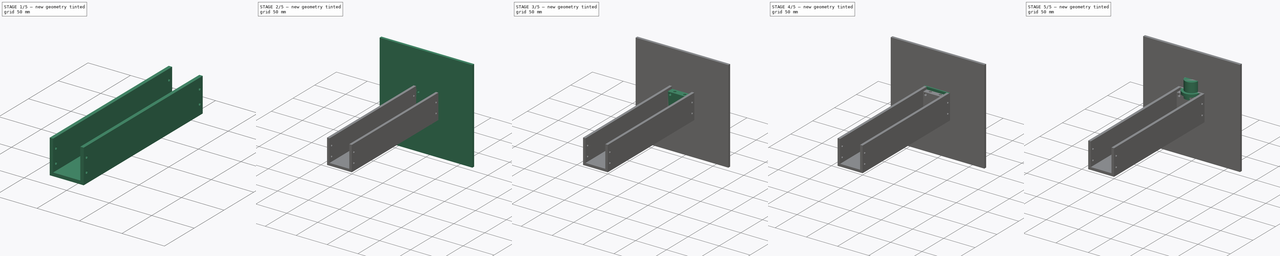
[diagram: build sequence overview — one tinted view per stage of 5, left to right]
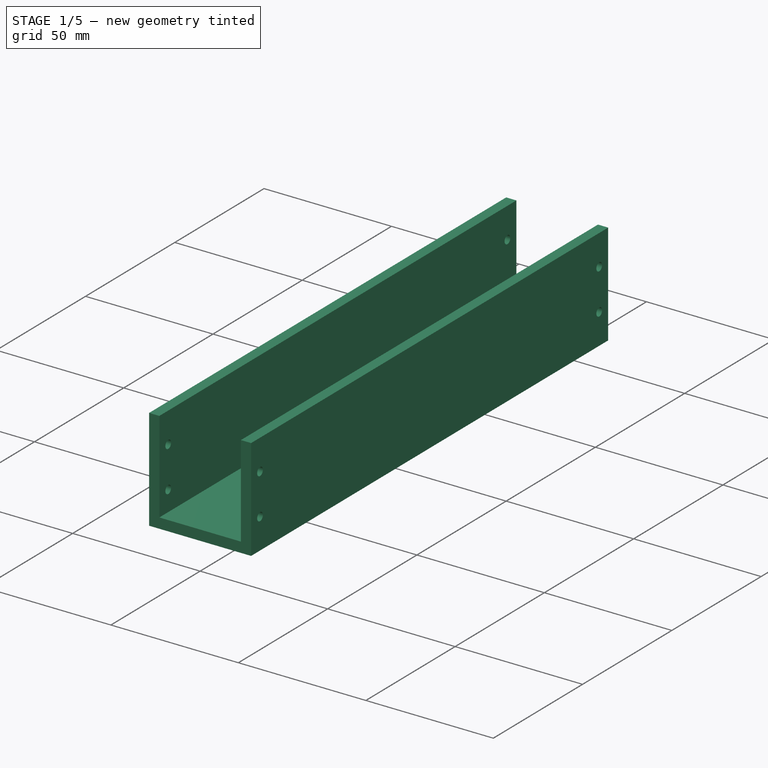
[diagram: stage 1 of 5 — iso view after this stage's code; geometry added in this stage tinted green]
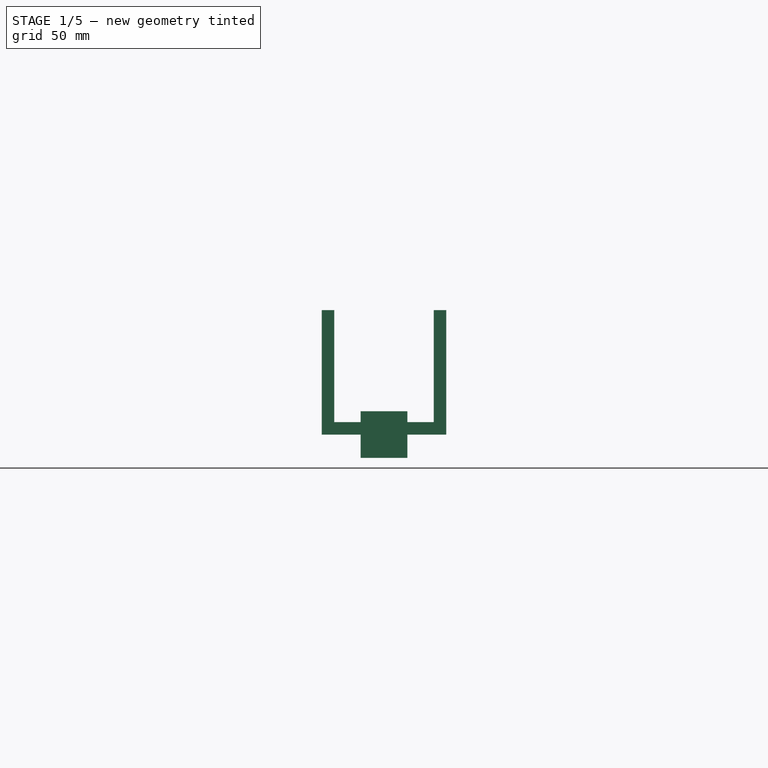
[diagram: stage 1 of 5 — front view after this stage's code; geometry added in this stage tinted green]
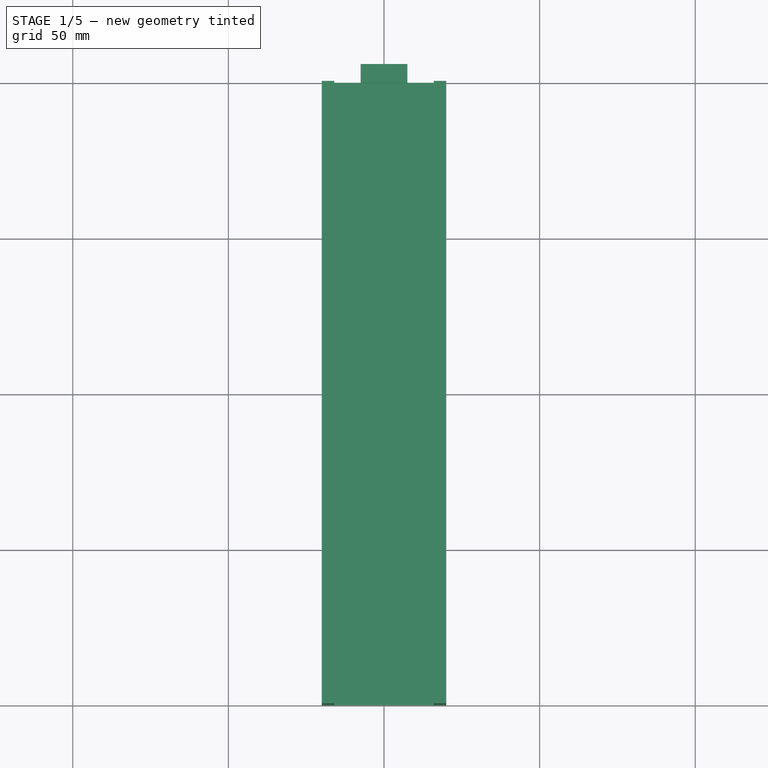
[diagram: stage 1 of 5 — top view after this stage's code; geometry added in this stage tinted green]
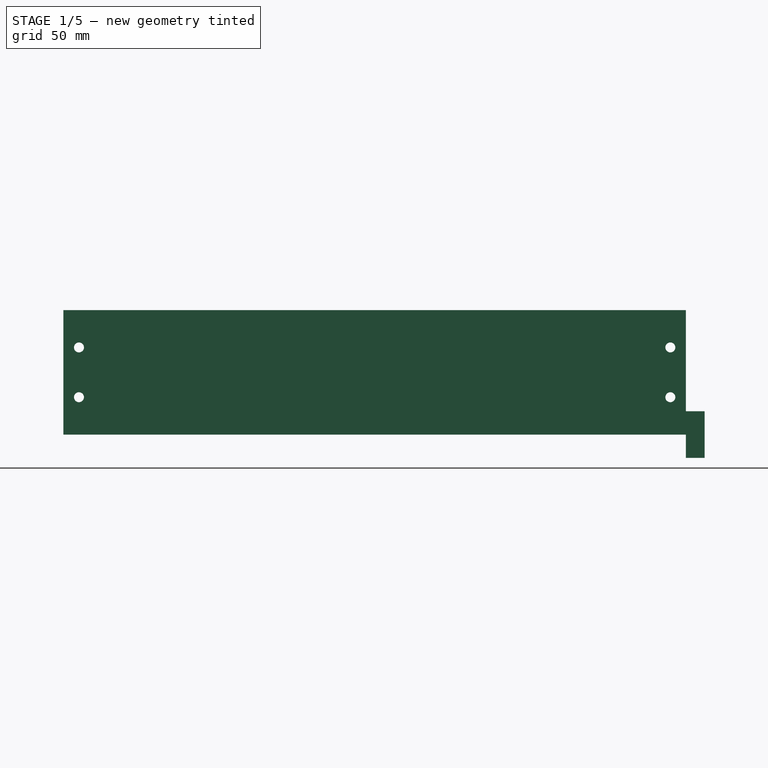
[diagram: stage 1 of 5 — right view after this stage's code; geometry added in this stage tinted green]
FCSTD DOCUMENT  (FreeCAD 0.20R)
Label: Alu-base-1
License: All rights reserved
LicenseURL: http://en.wikipedia.org/wiki/All_rights_reserved
objects: Sketcher::SketchObject×17, PartDesign::Pad×8, PartDesign::Body×8, PartDesign::Pocket×7, Part::Feature×2, App::Part×2, PartDesign::Revolution×2, PartDesign::Draft×1, Part::Part2DObjectPython×1
note: 64 computed .brp shape members not serialized (recipe doc carries the construction recipe); baked Part::Feature solids carry a one-line shape summary decoded from their .brp

FEATURE [Sketcher::SketchObject] Sketch
  FullyConstrained = true
  MapMode = 5
  Placement = pos=(0,0,0) rot=(1,0,0;1.5708rad)
  sketch-geometry (8):
    g0: LineSegment StartX=-20 StartY=40 StartZ=0 EndX=-20 EndY=0 EndZ=0
    g1: LineSegment StartX=-20 StartY=0 StartZ=0 EndX=20 EndY=-1e-16 EndZ=0
    g2: LineSegment StartX=20 StartY=-1e-16 StartZ=0 EndX=20 EndY=40 EndZ=0
    g3: LineSegment StartX=20 StartY=40 StartZ=0 EndX=16 EndY=40 EndZ=0
    g4: LineSegment StartX=16 StartY=4 StartZ=0 EndX=-16 EndY=4 EndZ=0
    g5: LineSegment StartX=-16 StartY=40 StartZ=0 EndX=-20 EndY=40 EndZ=0
    g6: LineSegment StartX=-16 StartY=40 StartZ=0 EndX=-16 EndY=4 EndZ=0
    g7: LineSegment StartX=16 StartY=40 StartZ=0 EndX=16 EndY=4 EndZ=0
  constraints (22):
    c: Vertical(g0)
    c: Coincident(g0,g1)
    c: Coincident(g1,g2)
    c: Coincident(g2,g3)
    c: Horizontal(g3)
    c: Coincident(g5,g0)
    c: Horizontal(g5)
    c: DistanceY(g0,g0) = 40
    c: PointOnObject(g0,g-1)
    c: DistanceX(g1,g1) = 40
    c: Symmetric(g0,g1,g-2)
    c: Symmetric(g0,g2,g-2)
    c: Equal(g3,g5)
    c: DistanceX(g5,g5) = 4
    c: Coincident(g6,g5)
    c: Coincident(g6,g4)
    c: Vertical(g6)
    c: Coincident(g7,g3)
    c: Coincident(g7,g4)
    c: Vertical(g7)
    c: DistanceY(g0,g4) = 4
    c: Horizontal(g4)
FEATURE [PartDesign::Pad] Pad
  Direction = (0,-1,2e-16)
  Length = 200
  Length2 = 10
  Placement = pos=(0,0,0) rot=(1,0,0;1.5708rad)
  Profile = -> Sketch
  ReferenceAxis = -> Sketch [N_Axis]
  Type = 0
FEATURE [PartDesign::Body] Body012  label="Bottom"
  Group = -> [Sketch032,Pad018,Sketch033,Pad019,Sketch034,Pocket013,Sketch035,Pocket014,Sketch039,Pocket015]
  Origin = -> Origin018
  Tip = -> Pocket015
FEATURE [Sketcher::SketchObject] Sketch042
  FullyConstrained = true
  MapMode = 5
  sketch-geometry (11):
    g0: LineSegment StartX=-16 StartY=-200 StartZ=0 EndX=16 EndY=-200 EndZ=0
    g1: LineSegment StartX=16 StartY=-200 StartZ=0 EndX=16 EndY=0 EndZ=0
    g2: LineSegment StartX=16 StartY=0 StartZ=0 EndX=-16 EndY=0 EndZ=0
    g3: LineSegment StartX=-16 StartY=0 StartZ=0 EndX=-16 EndY=-200 EndZ=0
    g4: LineSegment StartX=-8 StartY=-5 StartZ=0 EndX=8 EndY=-5 EndZ=0
    g5: Circle CenterX=-8 CenterY=-5 CenterZ=0 NormalX=0 NormalY=0 NormalZ=1 AngleXU=0 Radius=1.6
    g6: Circle CenterX=8 CenterY=-5 CenterZ=0 NormalX=0 NormalY=0 NormalZ=1 AngleXU=0 Radius=1.6
    g7: Circle CenterX=-8 CenterY=-195 CenterZ=0 NormalX=0 NormalY=0 NormalZ=1 AngleXU=0 Radius=1.6
    g8: Circle CenterX=8 CenterY=-195 CenterZ=0 NormalX=0 NormalY=0 NormalZ=1 AngleXU=0 Radius=1.6
    g9: LineSegment StartX=-8 StartY=-195 StartZ=0 EndX=8 EndY=-195 EndZ=0
    g10: Circle CenterX=0 CenterY=-25 CenterZ=0 NormalX=0 NormalY=0 NormalZ=1 AngleXU=0 Radius=11
  constraints (28):
    c: Coincident(g0,g1)
    c: Coincident(g1,g2)
    c: Coincident(g2,g3)
    c: Coincident(g3,g0)
    c: Horizontal(g2)
    c: Vertical(g1)
    c: Vertical(g3)
    c: Symmetric(g0,g0,g-2)
    c: DistanceY(g1,g1) = 200
    c: DistanceX(g2,g2) = 32
    c: PointOnObject(g2,g-1)
    c: Coincident(g5,g4)
    c: Coincident(g6,g4)
    c: Equal(g6,g5)
    c: Radius(g6) = 1.6
    c: Symmetric(g5,g6,g-2)
    c: DistanceX(g4,g4) = 16
    c: DistanceY(g6) = -5
    c: Equal(g7,g8)
    c: Coincident(g9,g7)
    c: Coincident(g9,g8)
    c: Symmetric(g7,g8,g-2)
    c: DistanceX(g9,g9) = 16
    c: DistanceY(g0,g8) = 5
    c: Equal(g8,g6)
    c: PointOnObject(g10,g-2)
    c: Radius(g10) = 11
    c: DistanceY(g10,g2) = 25
FEATURE [PartDesign::Pad] Pad021
  Direction = (0,0,1)
  Length = 4
  Length2 = 10
  Profile = -> Sketch042
  ReferenceAxis = -> Sketch042 [N_Axis]
  Type = 0
FEATURE [PartDesign::Body] Body019  label="Acrylic-base"
  Group = -> [Sketch049,Pad025]
  Origin = -> Origin025
  Placement = pos=(0,2,0) rot=(0,0,1;0rad)
  Tip = -> Pad025
FEATURE [Sketcher::SketchObject] Sketch053
  FullyConstrained = true
  MapMode = 5
  Placement = pos=(0,0,0) rot=(1,0,0;1.5708rad)
  Support = -> [XZ_Plane027]
  sketch-geometry (4):
    g0: LineSegment StartX=-7.5 StartY=7.5 StartZ=0 EndX=7.5 EndY=7.5 EndZ=0
    g1: LineSegment StartX=7.5 StartY=7.5 StartZ=0 EndX=7.5 EndY=-7.5 EndZ=0
    g2: LineSegment StartX=7.5 StartY=-7.5 StartZ=0 EndX=-7.5 EndY=-7.5 EndZ=0
    g3: LineSegment StartX=-7.5 StartY=-7.5 StartZ=0 EndX=-7.5 EndY=7.5 EndZ=0
  constraints (10):
    c: Coincident(g0,g1)
    c: Coincident(g1,g2)
    c: Coincident(g2,g3)
    c: Coincident(g3,g0)
    c: Horizontal(g0)
    c: Vertical(g3)
    c: Equal(g0,g1)
    c: DistanceX(g0,g0) = 15
    c: Symmetric(g1,g0,g-1)
    c: Symmetric(g1,g2,g-2)
FEATURE [PartDesign::Pad] Pad027
  Direction = (0,-1,2e-16)
  Length = 6
  Length2 = 10
  Placement = pos=(0,0,0) rot=(1,0,0;1.5708rad)
  Profile = -> Sketch053
  ReferenceAxis = -> Sketch053 [N_Axis]
  Reversed = true
  Type = 0
FEATURE [PartDesign::Body] Body021  label="Feet"
  Group = -> [Sketch053,Pad027,Draft]
  Origin = -> Origin027
  Placement = pos=(-65,6,-45) rot=(0,0,1;0rad)
  Tip = -> Draft
FEATURE [Sketcher::SketchObject] Sketch055
  ExternalGeometry = -> [Pad]
  FullyConstrained = true
  MapMode = 5
  Placement = pos=(-20,0,0) rot=(0.707107,0,-0.707107;3.14159rad)
  Support = -> [Pad]
  sketch-geometry (9):
    g0: Circle CenterX=-28 CenterY=195 CenterZ=0 NormalX=0 NormalY=0 NormalZ=1 AngleXU=0 Radius=1.6
    g1: Circle CenterX=-12 CenterY=195 CenterZ=0 NormalX=0 NormalY=0 NormalZ=1 AngleXU=0 Radius=1.6
    g2: LineSegment StartX=-28 StartY=195 StartZ=0 EndX=-12 EndY=195 EndZ=0
    g3: LineSegment StartX=-12 StartY=195 StartZ=0 EndX=-2.13e-14 EndY=200 EndZ=0
    g4: LineSegment StartX=-28 StartY=195 StartZ=0 EndX=-40 EndY=200 EndZ=0
    g5: Circle CenterX=-28 CenterY=5 CenterZ=0 NormalX=0 NormalY=0 NormalZ=1 AngleXU=0 Radius=1.6
    g6: Circle CenterX=-12 CenterY=5 CenterZ=0 NormalX=0 NormalY=0 NormalZ=1 AngleXU=0 Radius=1.6
    g7: LineSegment StartX=-28 StartY=5 StartZ=0 EndX=-12 EndY=5 EndZ=0
    g8: LineSegment StartX=-12 StartY=5 StartZ=0 EndX=-12 EndY=195 EndZ=0
  constraints (22):
    c: Coincident(g2,g0)
    c: Coincident(g2,g1)
    c: Horizontal(g2)
    c: Equal(g0,g1)
    c: DistanceX(g2,g2) = 16
    c: Coincident(g3,g1)
    c: Coincident(g3,g-3)
    c: Coincident(g4,g0)
    c: Coincident(g4,g-3)
    c: Equal(g4,g3)
    c: DistanceY(g1,g3) = 5
    c: Diameter(g1) = 3.2
    c: Coincident(g7,g5)
    c: Coincident(g7,g6)
    c: Horizontal(g7)
    c: Equal(g5,g6)
    c: DistanceX(g7,g7) = 16
    c: Equal(g6,g1)
    c: Coincident(g8,g6)
    c: Vertical(g8)
    c: Coincident(g8,g1)
    c: DistanceY(g-1,g6) = 5
FEATURE [PartDesign::Pocket] Pocket021
  BaseFeature = -> Pad
  Direction = (1,0,2e-16)
  Length = 5
  Length2 = 5
  Placement = pos=(0,0,0) rot=(1,0,0;1.5708rad)
  Profile = -> Sketch055
  ReferenceAxis = -> Sketch055 [N_Axis]
  Type = 1
FEATURE [PartDesign::Body] Body  label="Aluminium"
  Group = -> [Sketch,Pad,Sketch055,Pocket021]
  Origin = -> Origin
  Tip = -> Pocket021
FEATURE [Part::Part2DObjectPython] Shape2DView  # Draft 2D object (typed FeaturePython)
  AutoUpdate = true
  Base = -> Pad021
  Clip = false
  FaceNumbers = [10]
  FuseArch = false
  HiddenLines = false
  InPlace = true
  OnlySolids = false
  Projection = (0,0,1)
  ProjectionMode = 0
  SegmentLength = 0.05
  Tessellation = false
  VisibleOnly = false
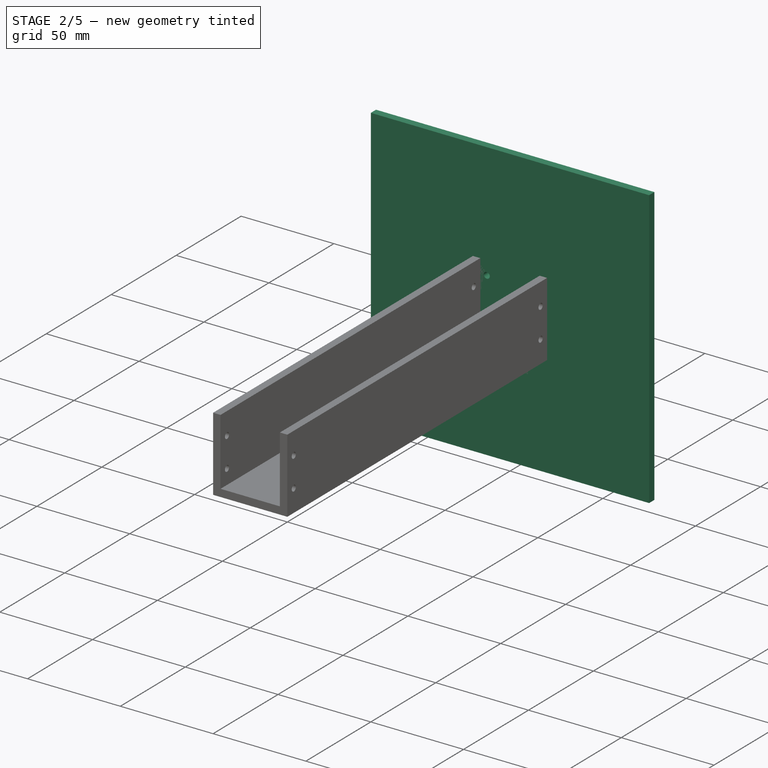
[diagram: stage 2 of 5 — iso view after this stage's code; geometry added in this stage tinted green]
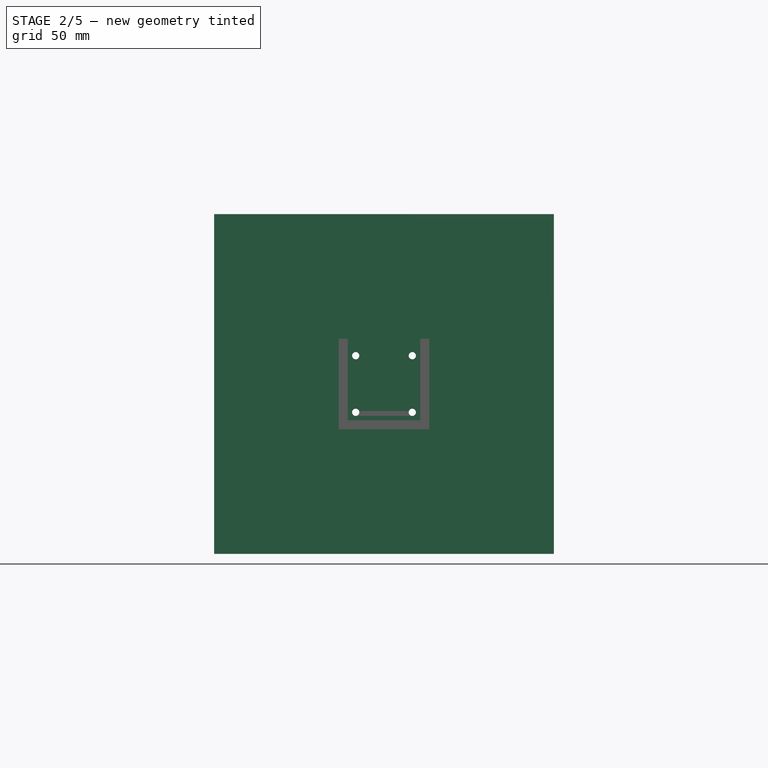
[diagram: stage 2 of 5 — front view after this stage's code; geometry added in this stage tinted green]
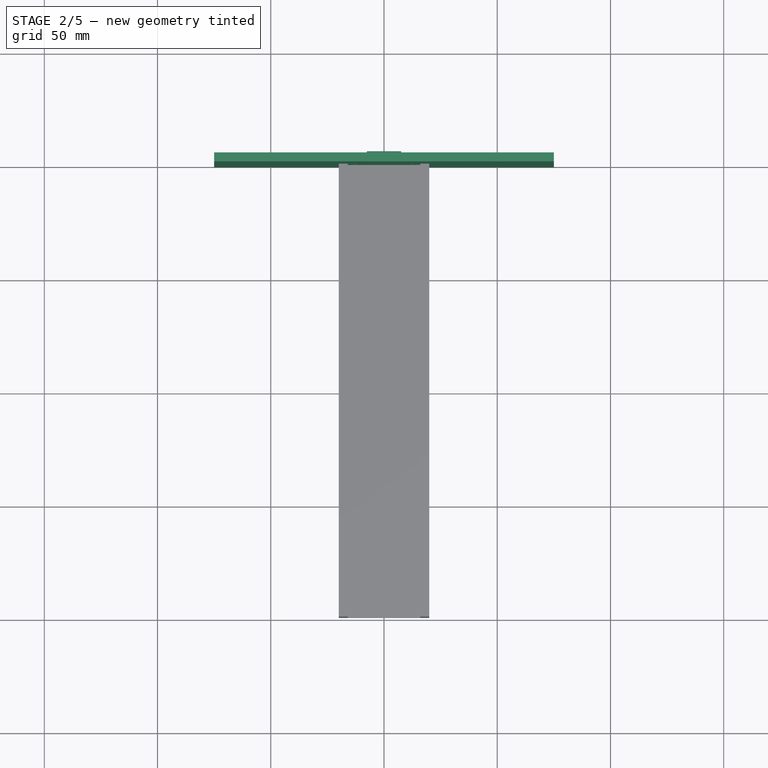
[diagram: stage 2 of 5 — top view after this stage's code; geometry added in this stage tinted green]
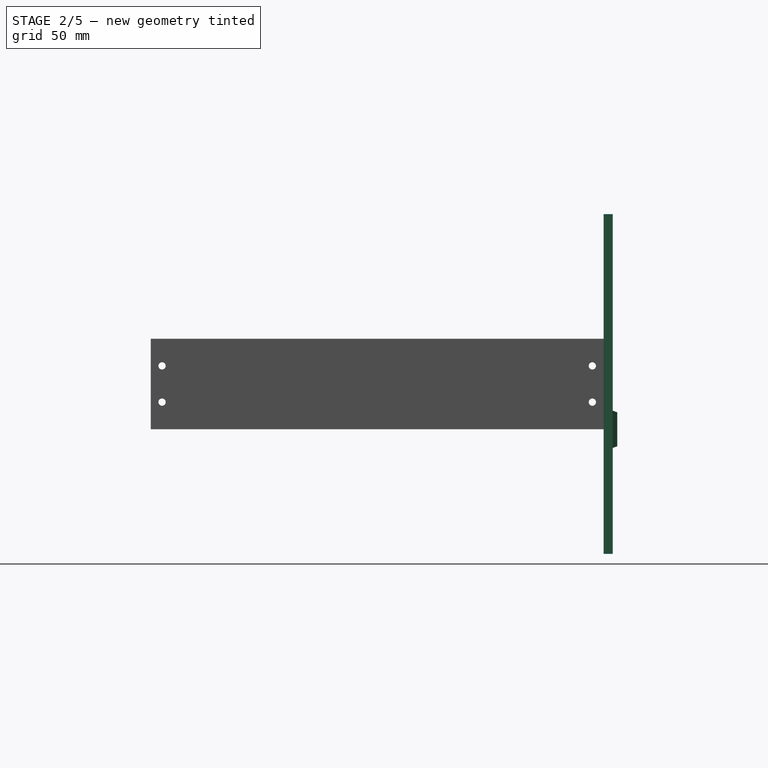
[diagram: stage 2 of 5 — right view after this stage's code; geometry added in this stage tinted green]
FEATURE [PartDesign::Body] Body003  label="Top"
  Group = -> [Sketch003,Pad003,Sketch006,Pad005,Sketch029,Pocket010,Sketch030,Pocket011,Sketch031,Pocket012]
  Origin = -> Origin009
  Placement = pos=(0,-200,0) rot=(0,0,1;0rad)
  Tip = -> Pocket012
FEATURE [Sketcher::SketchObject] Sketch032
  FullyConstrained = true
  MapMode = 5
  Placement = pos=(0,0,0) rot=(1,0,0;1.5708rad)
  Support = -> [XZ_Plane018]
  sketch-geometry (13):
    g0: LineSegment StartX=-20 StartY=40 StartZ=0 EndX=20 EndY=40 EndZ=0
    g1: LineSegment StartX=20 StartY=40 StartZ=0 EndX=20 EndY=0 EndZ=0
    g2: LineSegment StartX=20 StartY=0 StartZ=0 EndX=-20 EndY=0 EndZ=0
    g3: LineSegment StartX=-20 StartY=0 StartZ=0 EndX=-20 EndY=40 EndZ=0
    g4: Circle CenterX=-12.5 CenterY=7.5 CenterZ=0 NormalX=0 NormalY=0 NormalZ=1 AngleXU=0 Radius=2
    g5: Circle CenterX=-12.5 CenterY=32.5 CenterZ=0 NormalX=0 NormalY=0 NormalZ=1 AngleXU=0 Radius=2
    g6: Circle CenterX=12.5 CenterY=32.5 CenterZ=0 NormalX=0 NormalY=0 NormalZ=1 AngleXU=0 Radius=2
    g7: Circle CenterX=12.5 CenterY=7.5 CenterZ=0 NormalX=0 NormalY=0 NormalZ=1 AngleXU=0 Radius=2
    g8: LineSegment StartX=-12.5 StartY=32.5 StartZ=0 EndX=12.5 EndY=32.5 EndZ=0
    g9: LineSegment StartX=12.5 StartY=32.5 StartZ=0 EndX=12.5 EndY=7.5 EndZ=0
    g10: LineSegment StartX=12.5 StartY=7.5 StartZ=0 EndX=-12.5 EndY=7.5 EndZ=0
    g11: LineSegment StartX=-12.5 StartY=7.5 StartZ=0 EndX=-12.5 EndY=32.5 EndZ=0
    g12: LineSegment StartX=-20 StartY=20 StartZ=0 EndX=20 EndY=20 EndZ=0
  constraints (33):
    c: Horizontal(g2)
    c: Vertical(g1)
    c: Vertical(g3)
    c: DistanceY(g2,g0) = 40
    c: DistanceX(g3,g1) = 40
    c: Symmetric(g3,g1,g-2)
    c: Coincident(g8,g9)
    c: Coincident(g9,g10)
    c: Coincident(g10,g11)
    c: Coincident(g11,g8)
    c: Horizontal(g10)
    c: Vertical(g9)
    c: Vertical(g11)
    c: Coincident(g8,g5)
    c: Coincident(g9,g7)
    c: Coincident(g6,g8)
    c: Coincident(g4,g10)
    c: Equal(g4,g5)
    c: Equal(g5,g6)
    c: Equal(g6,g7)
    c: Diameter(g6) = 4
    c: Equal(g8,g9)
    c: DistanceX(g8,g8) = 25
    c: Symmetric(g5,g6,g-2)
    c: PointOnObject(g2,g-1)
    c: Coincident(g0,g3)
    c: Coincident(g0,g1)
    c: Coincident(g1,g2)
    c: Coincident(g2,g3)
    c: PointOnObject(g12,g3)
    c: PointOnObject(g12,g1)
    c: DistanceY(g12) = 20
    c: Symmetric(g7,g6,g12)
FEATURE [PartDesign::Pad] Pad018
  Direction = (0,-1,-2e-16)
  Length = 2
  Length2 = 10
  Placement = pos=(0,0,0) rot=(1,0,0;1.5708rad)
  Profile = -> Sketch032
  ReferenceAxis = -> Sketch032 [N_Axis]
  Reversed = true
  Type = 0
FEATURE [PartDesign::Body] Body015  label="Acrylic-front"
  Group = -> [Sketch042,Pad021]
  Origin = -> Origin021
  Placement = pos=(0,0,36) rot=(0,0,1;0rad)
  Tip = -> Pad021
FEATURE [Sketcher::SketchObject] Sketch049
  FullyConstrained = true
  MapMode = 5
  Placement = pos=(0,0,0) rot=(1,0,0;1.5708rad)
  Support = -> [XZ_Plane025]
  sketch-geometry (12):
    g0: LineSegment StartX=-75 StartY=95 StartZ=0 EndX=75 EndY=95 EndZ=0
    g1: LineSegment StartX=75 StartY=95 StartZ=0 EndX=75 EndY=-55 EndZ=0
    g2: LineSegment StartX=75 StartY=-55 StartZ=0 EndX=-75 EndY=-55 EndZ=0
    g3: LineSegment StartX=-75 StartY=-55 StartZ=0 EndX=-75 EndY=95 EndZ=0
    g4: Circle CenterX=-12.5 CenterY=7.5 CenterZ=0 NormalX=0 NormalY=0 NormalZ=1 AngleXU=0 Radius=1.6
    g5: Circle CenterX=-12.5 CenterY=32.5 CenterZ=0 NormalX=0 NormalY=0 NormalZ=1 AngleXU=0 Radius=1.6
    g6: Circle CenterX=12.5 CenterY=32.5 CenterZ=0 NormalX=0 NormalY=0 NormalZ=1 AngleXU=0 Radius=1.6
    g7: Circle CenterX=12.5 CenterY=7.5 CenterZ=0 NormalX=0 NormalY=0 NormalZ=1 AngleXU=0 Radius=1.6
    g8: LineSegment StartX=-12.5 StartY=32.5 StartZ=0 EndX=12.5 EndY=32.5 EndZ=0
    g9: LineSegment StartX=12.5 StartY=32.5 StartZ=0 EndX=12.5 EndY=7.5 EndZ=0
    g10: LineSegment StartX=12.5 StartY=7.5 StartZ=0 EndX=-12.5 EndY=7.5 EndZ=0
    g11: LineSegment StartX=-12.5 StartY=7.5 StartZ=0 EndX=-12.5 EndY=32.5 EndZ=0
  constraints (30):
    c: Coincident(g0,g1)
    c: Coincident(g1,g2)
    c: Coincident(g2,g3)
    c: Coincident(g3,g0)
    c: Horizontal(g2)
    c: Vertical(g1)
    c: Vertical(g3)
    c: Equal(g3,g0)
    c: DistanceY(g3,g3) = 150
    c: Symmetric(g0,g0,g-2)
    c: DistanceY(g0) = 95
    c: Equal(g5,g6)
    c: Equal(g6,g7)
    c: Equal(g7,g4)
    c: Coincident(g8,g9)
    c: Coincident(g9,g10)
    c: Coincident(g10,g11)
    c: Coincident(g11,g8)
    c: Horizontal(g10)
    c: Vertical(g9)
    c: Vertical(g11)
    c: Coincident(g8,g5)
    c: Coincident(g9,g7)
    c: Coincident(g6,g8)
    c: Coincident(g4,g10)
    c: Equal(g11,g8)
    c: Symmetric(g5,g6,g-2)
    c: DistanceX(g8,g8) = 25
    c: Radius(g5) = 1.6
    c: DistanceY(g4) = 7.5
FEATURE [PartDesign::Pad] Pad025
  Direction = (0,-1,2e-16)
  Length = 4
  Length2 = 10
  Placement = pos=(0,0,0) rot=(1,0,0;1.5708rad)
  Profile = -> Sketch049
  ReferenceAxis = -> Sketch049 [N_Axis]
  Reversed = true
  Type = 0
FEATURE [PartDesign::Draft] Draft
  Angle = 20
  Base = -> Pad027 [Face2,Face1,Face4,Face3]
  BaseFeature = -> Pad027
  NeutralPlane = -> Pad027 [Face6]
  Placement = pos=(0,0,0) rot=(1,0,0;1.5708rad)
  SupportTransform = false
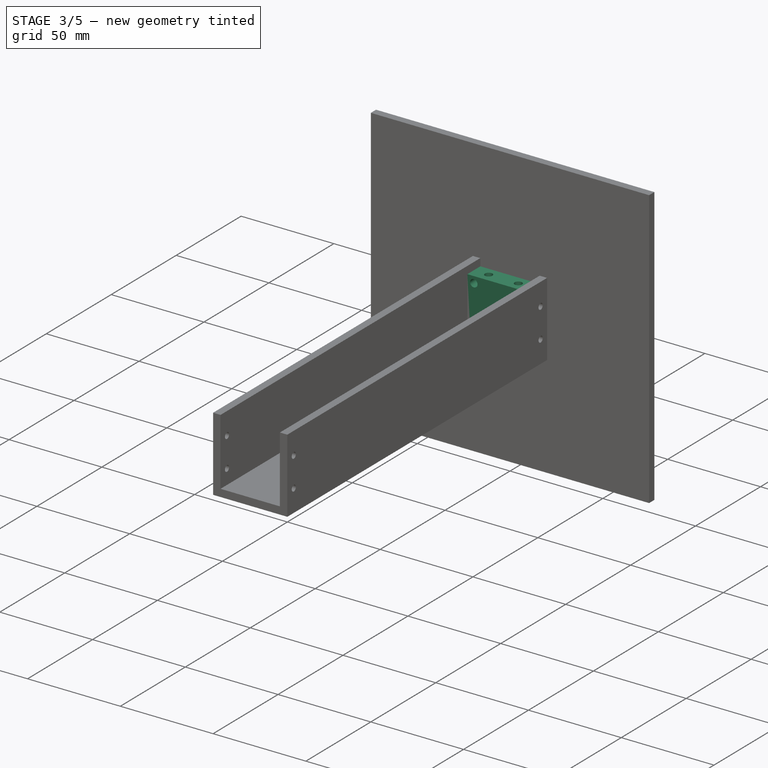
[diagram: stage 3 of 5 — iso view after this stage's code; geometry added in this stage tinted green]
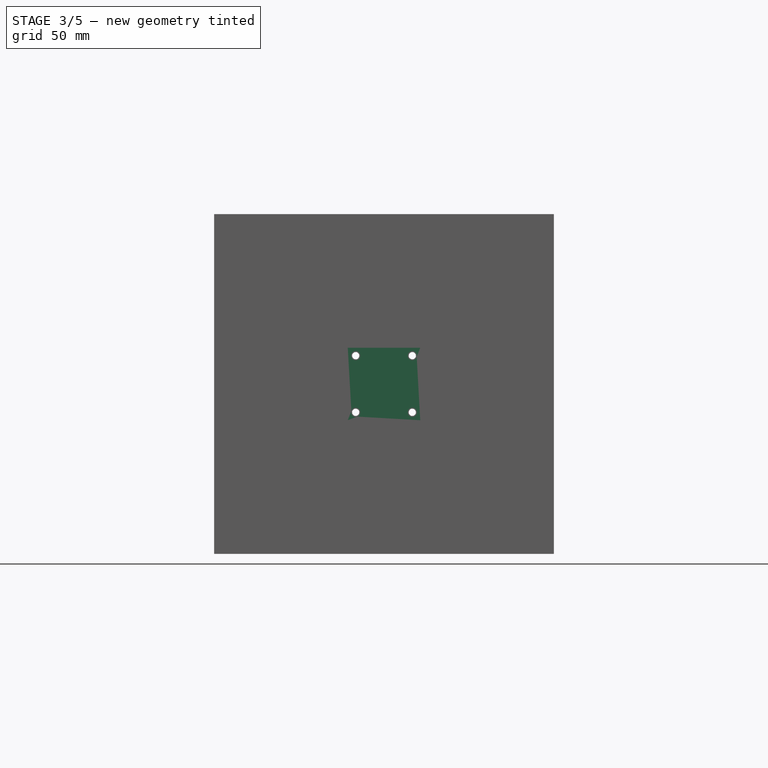
[diagram: stage 3 of 5 — front view after this stage's code; geometry added in this stage tinted green]
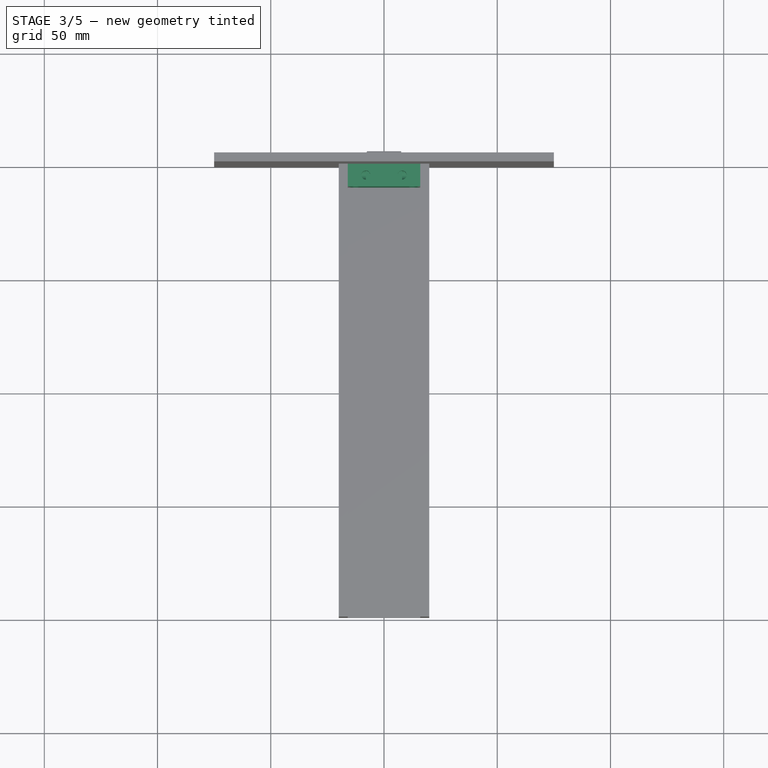
[diagram: stage 3 of 5 — top view after this stage's code; geometry added in this stage tinted green]
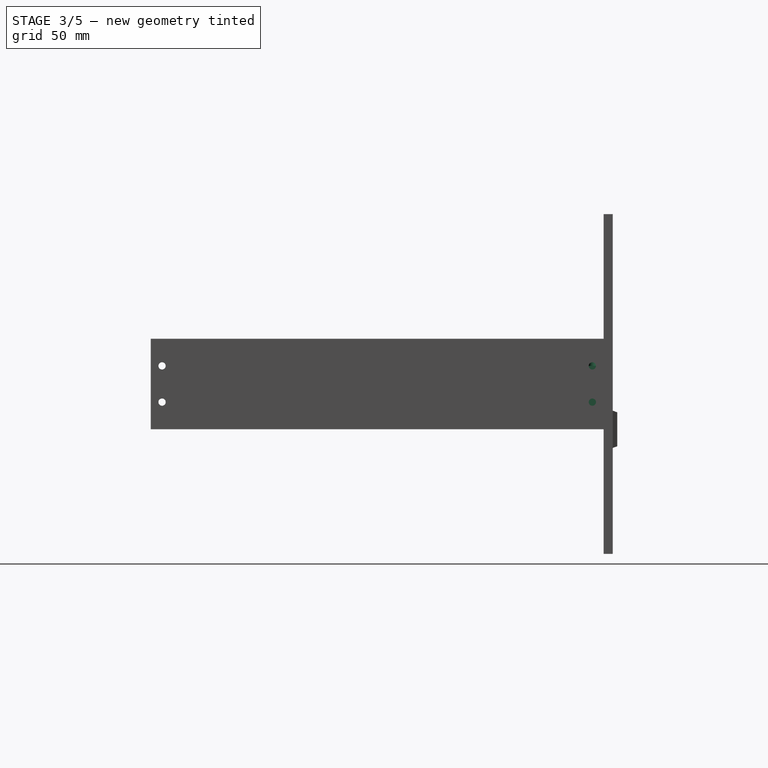
[diagram: stage 3 of 5 — right view after this stage's code; geometry added in this stage tinted green]
FEATURE [Sketcher::SketchObject] Sketch033
  FullyConstrained = true
  MapMode = 5
  Placement = pos=(0,0,0) rot=(1,0,0;1.5708rad)
  Support = -> [Pad018]
  sketch-geometry (12):
    g0: LineSegment StartX=-16 StartY=36 StartZ=0 EndX=16 EndY=36 EndZ=0
    g1: LineSegment StartX=16 StartY=36 StartZ=0 EndX=16 EndY=4 EndZ=0
    g2: LineSegment StartX=16 StartY=4 StartZ=0 EndX=-16 EndY=4 EndZ=0
    g3: LineSegment StartX=-16 StartY=4 StartZ=0 EndX=-16 EndY=36 EndZ=0
    g4: Circle CenterX=-12.5 CenterY=32.5 CenterZ=0 NormalX=0 NormalY=0 NormalZ=1 AngleXU=0 Radius=2
    g5: Circle CenterX=12.5 CenterY=32.5 CenterZ=0 NormalX=0 NormalY=0 NormalZ=1 AngleXU=0 Radius=2
    g6: Circle CenterX=-12.5 CenterY=7.5 CenterZ=0 NormalX=0 NormalY=0 NormalZ=1 AngleXU=0 Radius=2
    g7: Circle CenterX=12.5 CenterY=7.5 CenterZ=0 NormalX=0 NormalY=0 NormalZ=1 AngleXU=0 Radius=2
    g8: LineSegment StartX=-12.5 StartY=32.5 StartZ=0 EndX=12.5 EndY=32.5 EndZ=0
    g9: LineSegment StartX=12.5 StartY=32.5 StartZ=0 EndX=12.5 EndY=7.5 EndZ=0
    g10: LineSegment StartX=12.5 StartY=7.5 StartZ=0 EndX=-12.5 EndY=7.5 EndZ=0
    g11: LineSegment StartX=-12.5 StartY=7.5 StartZ=0 EndX=-12.5 EndY=32.5 EndZ=0
  constraints (30):
    c: Coincident(g0,g1)
    c: Coincident(g1,g2)
    c: Coincident(g2,g3)
    c: Coincident(g3,g0)
    c: Horizontal(g2)
    c: Vertical(g1)
    c: Vertical(g3)
    c: Symmetric(g0,g0,g-2)
    c: DistanceX(g0,g0) = 32
    c: DistanceY(g3,g3) = 32
    c: DistanceY(g1) = 4
    c: Coincident(g8,g9)
    c: Coincident(g9,g10)
    c: Coincident(g10,g11)
    c: Coincident(g11,g8)
    c: Horizontal(g8)
    c: Vertical(g9)
    c: Vertical(g11)
    c: Coincident(g8,g4)
    c: Coincident(g9,g7)
    c: Coincident(g6,g10)
    c: Coincident(g5,g8)
    c: Equal(g6,g4)
    c: Equal(g4,g5)
    c: Equal(g5,g7)
    c: Symmetric(g6,g7,g-2)
    c: DistanceX(g8,g8) = 25
    c: Radius(g5) = 2
    c: DistanceY(g7) = 7.5
    c: Equal(g9,g8)
FEATURE [PartDesign::Pad] Pad019
  BaseFeature = -> Pad018
  Direction = (0,-1,-2e-16)
  Length = 10
  Length2 = 10
  Placement = pos=(0,0,0) rot=(1,0,0;1.5708rad)
  Profile = -> Sketch033
  ReferenceAxis = -> Sketch033 [N_Axis]
  Type = 0
FEATURE [Sketcher::SketchObject] Sketch034
  FullyConstrained = true
  MapMode = 5
  Placement = pos=(-16,0,0) rot=(0.707107,0,-0.707107;3.14159rad)
  Support = -> [Pad019]
  sketch-geometry (3):
    g0: Circle CenterX=-28 CenterY=5 CenterZ=0 NormalX=0 NormalY=0 NormalZ=1 AngleXU=0 Radius=2
    g1: Circle CenterX=-12 CenterY=5 CenterZ=0 NormalX=0 NormalY=0 NormalZ=1 AngleXU=0 Radius=2
    g2: LineSegment StartX=-28 StartY=5 StartZ=0 EndX=-12 EndY=5 EndZ=0
  constraints (8):
    c: Equal(g0,g1)
    c: Coincident(g2,g0)
    c: Coincident(g2,g1)
    c: Horizontal(g2)
    c: DistanceX(g2,g2) = 16
    c: Diameter(g0) = 4
    c: DistanceY(g1) = 5
    c: DistanceX(g1) = -12
FEATURE [PartDesign::Pocket] Pocket013
  BaseFeature = -> Pad019
  Direction = (1,0,2e-16)
  Length = 8
  Length2 = 5
  Placement = pos=(0,0,0) rot=(1,0,0;1.5708rad)
  Profile = -> Sketch034
  ReferenceAxis = -> Sketch034 [N_Axis]
  Type = 0
FEATURE [Sketcher::SketchObject] Sketch035
  FullyConstrained = true
  MapMode = 5
  Placement = pos=(0,8e-15,36) rot=(0,0,1;3.14159rad)
  Support = -> [Pocket013]
  sketch-geometry (3):
    g0: Circle CenterX=-8 CenterY=5 CenterZ=0 NormalX=0 NormalY=0 NormalZ=1 AngleXU=0 Radius=2
    g1: Circle CenterX=8 CenterY=5 CenterZ=0 NormalX=0 NormalY=0 NormalZ=1 AngleXU=0 Radius=2
    g2: LineSegment StartX=-8 StartY=5 StartZ=0 EndX=8 EndY=5 EndZ=0
  constraints (7):
    c: Coincident(g2,g0)
    c: Coincident(g2,g1)
    c: Symmetric(g0,g1,g-2)
    c: Equal(g1,g0)
    c: Radius(g0) = 2
    c: DistanceX(g2,g2) = 16
    c: DistanceY(g1) = 5
FEATURE [PartDesign::Pocket] Pocket014
  BaseFeature = -> Pocket013
  Direction = (0,2e-16,-1)
  Length = 8
  Length2 = 5
  Placement = pos=(0,0,0) rot=(1,0,0;1.5708rad)
  Profile = -> Sketch035
  ReferenceAxis = -> Sketch035 [N_Axis]
  Type = 0
FEATURE [Sketcher::SketchObject] Sketch039
  FullyConstrained = true
  MapMode = 5
  Placement = pos=(16,0,0) rot=(0.707107,0,0.707107;3.14159rad)
  Support = -> [Pocket014]
  sketch-geometry (3):
    g0: Circle CenterX=12 CenterY=5 CenterZ=0 NormalX=0 NormalY=0 NormalZ=1 AngleXU=0 Radius=2
    g1: Circle CenterX=28 CenterY=5 CenterZ=0 NormalX=0 NormalY=0 NormalZ=1 AngleXU=0 Radius=2
    g2: LineSegment StartX=12 StartY=5 StartZ=0 EndX=28 EndY=5 EndZ=0
  constraints (8):
    c: Equal(g1,g0)
    c: Coincident(g2,g0)
    c: Coincident(g2,g1)
    c: Horizontal(g2)
    c: DistanceX(g2,g2) = 16
    c: DistanceY(g0) = 5
    c: DistanceX(g0) = 12
    c: Radius(g0) = 2
FEATURE [PartDesign::Pocket] Pocket015
  BaseFeature = -> Pocket014
  Direction = (-1,0,-2e-16)
  Length = 8
  Length2 = 5
  Placement = pos=(0,0,0) rot=(1,0,0;1.5708rad)
  Profile = -> Sketch039
  ReferenceAxis = -> Sketch039 [N_Axis]
  Type = 0
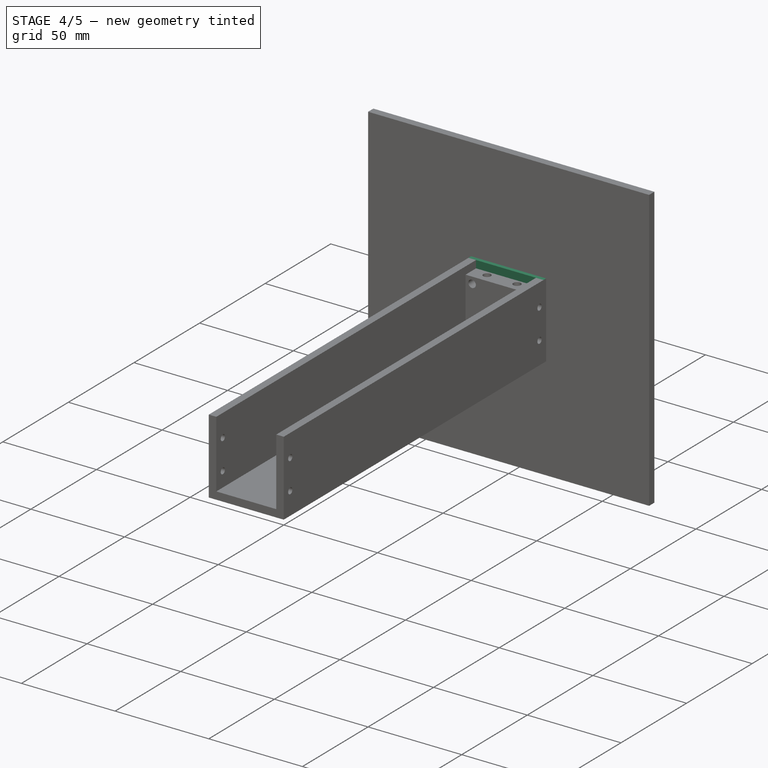
[diagram: stage 4 of 5 — iso view after this stage's code; geometry added in this stage tinted green]
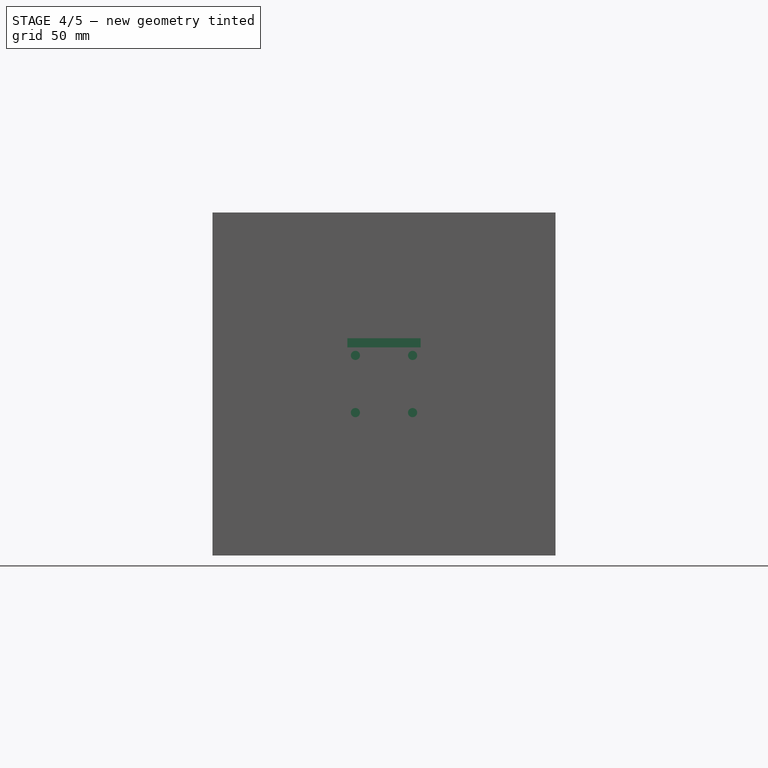
[diagram: stage 4 of 5 — front view after this stage's code; geometry added in this stage tinted green]
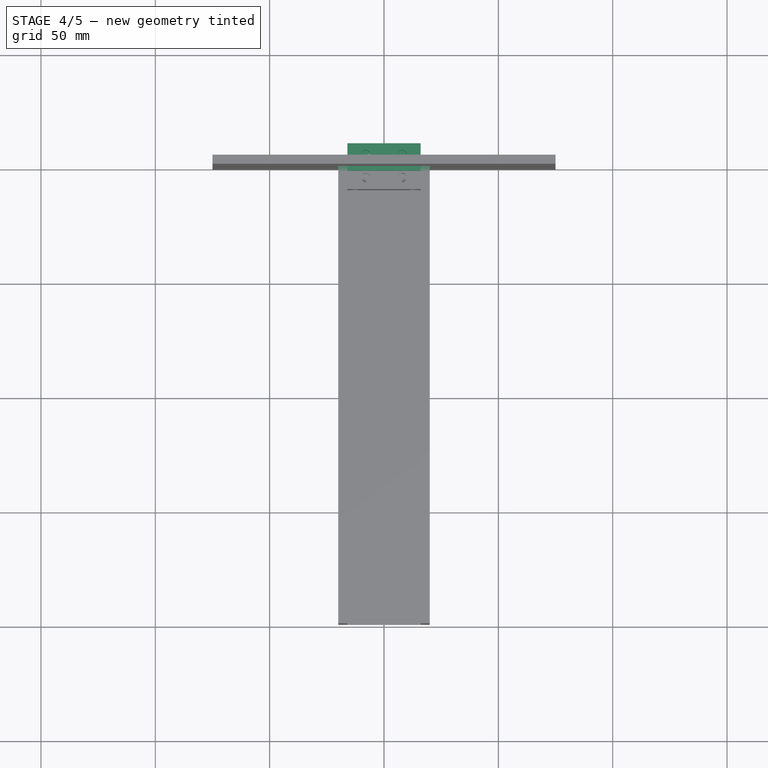
[diagram: stage 4 of 5 — top view after this stage's code; geometry added in this stage tinted green]
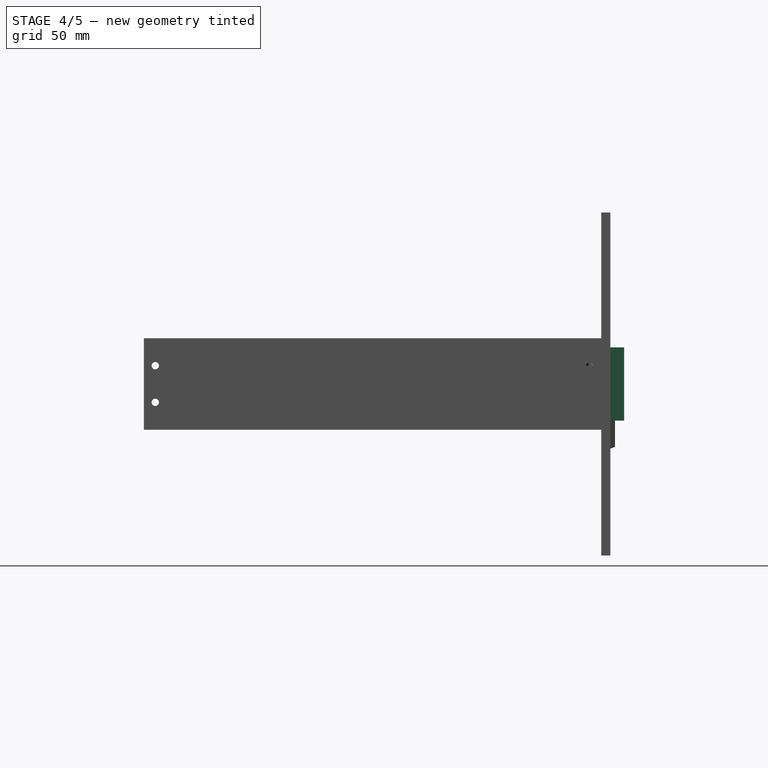
[diagram: stage 4 of 5 — right view after this stage's code; geometry added in this stage tinted green]
FEATURE [Part::Feature] Part__Feature004  label="SOLID003"
  shape: bbox 18 x 19.2 x 3.2 mm, 766 faces (baked)
FEATURE [App::Part] ESP32_WROOM_32U  label="ESP32-WROOM-32U"
  Group = -> [Part__Feature004]
  Origin = -> Origin006
  Placement = pos=(140,-61,1.65) rot=(0,0,-1;1.5708rad)
FEATURE [Part::Feature] Part__Feature005  label="Receiver PCB"
  shape: bbox 100 x 22 x 1.6 mm, 18 faces (baked)
FEATURE [App::Part] Receiver_1  label="Receiver 1"
  Group = -> [ESP32_WROOM_32U,Part__Feature005]
  Origin = -> Origin007
  Placement = pos=(66,-32,5.2) rot=(0,0,1;-1.5708rad)
FEATURE [Sketcher::SketchObject] Sketch003
  FullyConstrained = true
  MapMode = 5
  Placement = pos=(0,0,0) rot=(1,0,0;1.5708rad)
  Support = -> [XZ_Plane009]
  sketch-geometry (7):
    g0: LineSegment StartX=-20 StartY=40 StartZ=0 EndX=20 EndY=40 EndZ=0
    g1: LineSegment StartX=20 StartY=40 StartZ=0 EndX=20 EndY=0 EndZ=0
    g2: LineSegment StartX=20 StartY=0 StartZ=0 EndX=-20 EndY=0 EndZ=0
    g3: LineSegment StartX=-20 StartY=0 StartZ=0 EndX=-20 EndY=40 EndZ=0
    g4: Circle CenterX=0 CenterY=20 CenterZ=0 NormalX=0 NormalY=0 NormalZ=1 AngleXU=0 Radius=2.05
    g5: LineSegment StartX=0 StartY=20 StartZ=0 EndX=20 EndY=40 EndZ=0
    g6: LineSegment StartX=0 StartY=20 StartZ=0 EndX=20 EndY=0 EndZ=0
  constraints (18):
    c: Horizontal(g2)
    c: Vertical(g1)
    c: Vertical(g3)
    c: DistanceY(g2,g0) = 40
    c: DistanceX(g3,g1) = 40
    c: PointOnObject(g4,g-2)
    c: Coincident(g5,g4)
    c: Coincident(g6,g4)
    c: Equal(g6,g5)
    c: Diameter(g4) = 4.1
    c: Symmetric(g0,g0,g-2)
    c: Coincident(g0,g3)
    c: Coincident(g0,g1)
    c: Coincident(g0,g5)
    c: Coincident(g1,g2)
    c: Coincident(g1,g6)
    c: Coincident(g2,g3)
    c: PointOnObject(g1,g-1)
FEATURE [PartDesign::Pad] Pad003
  Direction = (0,-1,-2e-16)
  Length = 2
  Length2 = 10
  Placement = pos=(0,0,0) rot=(1,0,0;1.5708rad)
  Profile = -> Sketch003
  ReferenceAxis = -> Sketch003 [N_Axis]
  Type = 0
FEATURE [PartDesign::Body] Body004  label="Antenna"
  Group = -> [Sketch004,Revolution]
  Origin = -> Origin010
  Placement = pos=(0,-200,21.5) rot=(0,0,1;3.14159rad)
  Tip = -> Revolution
FEATURE [Sketcher::SketchObject] Sketch006
  FullyConstrained = true
  MapMode = 5
  Placement = pos=(0,0,0) rot=(-1,0,0;1.5708rad)
  Support = -> [Pad003]
  sketch-geometry (8):
    g0: LineSegment StartX=-16 StartY=-4 StartZ=0 EndX=16 EndY=-4 EndZ=0
    g1: LineSegment StartX=16 StartY=-4 StartZ=0 EndX=16 EndY=-36 EndZ=0
    g2: LineSegment StartX=16 StartY=-36 StartZ=0 EndX=-16 EndY=-36 EndZ=0
    g3: LineSegment StartX=-16 StartY=-36 StartZ=0 EndX=-16 EndY=-4 EndZ=0
    g4: LineSegment StartX=-7 StartY=-13 StartZ=0 EndX=7 EndY=-13 EndZ=0
    g5: LineSegment StartX=7 StartY=-13 StartZ=0 EndX=7 EndY=-27 EndZ=0
    g6: LineSegment StartX=7 StartY=-27 StartZ=0 EndX=-7 EndY=-27 EndZ=0
    g7: LineSegment StartX=-7 StartY=-27 StartZ=0 EndX=-7 EndY=-13 EndZ=0
  constraints (22):
    c: Coincident(g0,g1)
    c: Coincident(g1,g2)
    c: Coincident(g2,g3)
    c: Coincident(g3,g0)
    c: Horizontal(g0)
    c: Vertical(g1)
    c: Vertical(g3)
    c: Coincident(g4,g5)
    c: Coincident(g5,g6)
    c: Coincident(g6,g7)
    c: Coincident(g7,g4)
    c: Horizontal(g4)
    c: Vertical(g5)
    c: Vertical(g7)
    c: DistanceX(g2,g2) = 32
    c: Symmetric(g1,g2,g-2)
    c: Symmetric(g5,g6,g-2)
    c: DistanceY(g1,g1) = 32
    c: DistanceY(g0) = -4
    c: DistanceX(g4,g0) = 9
    c: DistanceY(g4,g0) = 9
    c: DistanceY(g1,g5) = 9
FEATURE [PartDesign::Pad] Pad005
  BaseFeature = -> Pad003
  Direction = (0,1,2e-16)
  Length = 10
  Length2 = 10
  Placement = pos=(0,0,0) rot=(1,0,0;1.5708rad)
  Profile = -> Sketch006
  ReferenceAxis = -> Sketch006 [N_Axis]
  Type = 0
FEATURE [PartDesign::Body] Body008  label="USB-C"
  Group = -> [Sketch017,Revolution001]
  Origin = -> Origin014
  Placement = pos=(0,-25,-2) rot=(0,0,1;0rad)
  Tip = -> Revolution001
FEATURE [Sketcher::SketchObject] Sketch029
  FullyConstrained = true
  MapMode = 5
  Placement = pos=(0,-1.19e-14,36) rot=(0,0,1;3.14159rad)
  Support = -> [Pad005]
  sketch-geometry (3):
    g0: LineSegment StartX=-8 StartY=-5 StartZ=0 EndX=8 EndY=-5 EndZ=0
    g1: Circle CenterX=-8 CenterY=-5 CenterZ=0 NormalX=0 NormalY=0 NormalZ=1 AngleXU=0 Radius=2
    g2: Circle CenterX=8 CenterY=-5 CenterZ=0 NormalX=0 NormalY=0 NormalZ=1 AngleXU=0 Radius=2
  constraints (7):
    c: Coincident(g1,g0)
    c: Coincident(g2,g0)
    c: Equal(g2,g1)
    c: Radius(g1) = 2
    c: DistanceX(g0,g0) = 16
    c: DistanceY(g2) = -5
    c: Symmetric(g1,g2,g-2)
FEATURE [PartDesign::Pocket] Pocket010
  BaseFeature = -> Pad005
  Direction = (0,1e-16,-1)
  Length = 8
  Length2 = 5
  Placement = pos=(0,0,0) rot=(1,0,0;1.5708rad)
  Profile = -> Sketch029
  ReferenceAxis = -> Sketch029 [N_Axis]
  Type = 0
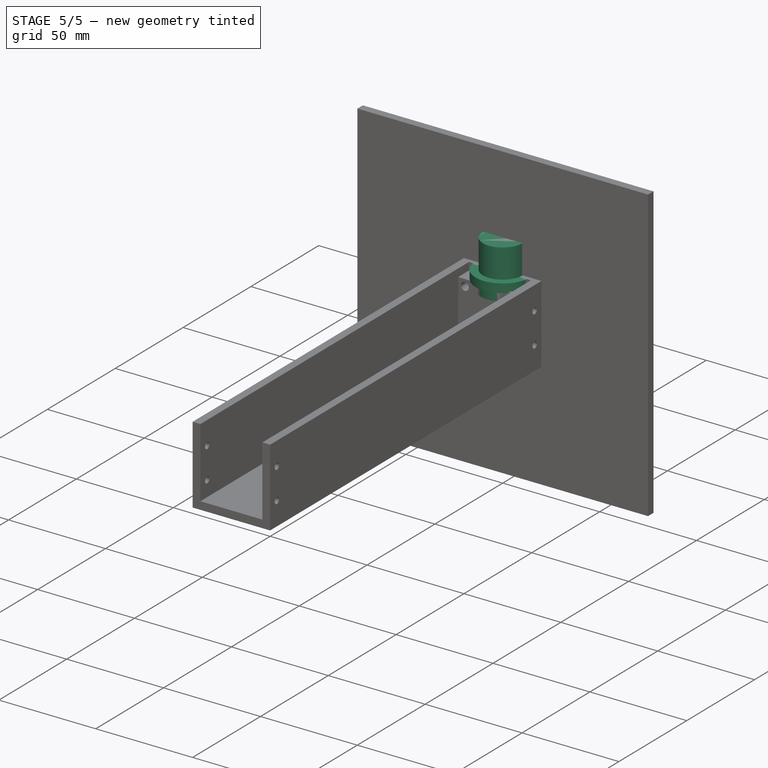
[diagram: stage 5 of 5 — iso view after this stage's code; geometry added in this stage tinted green]
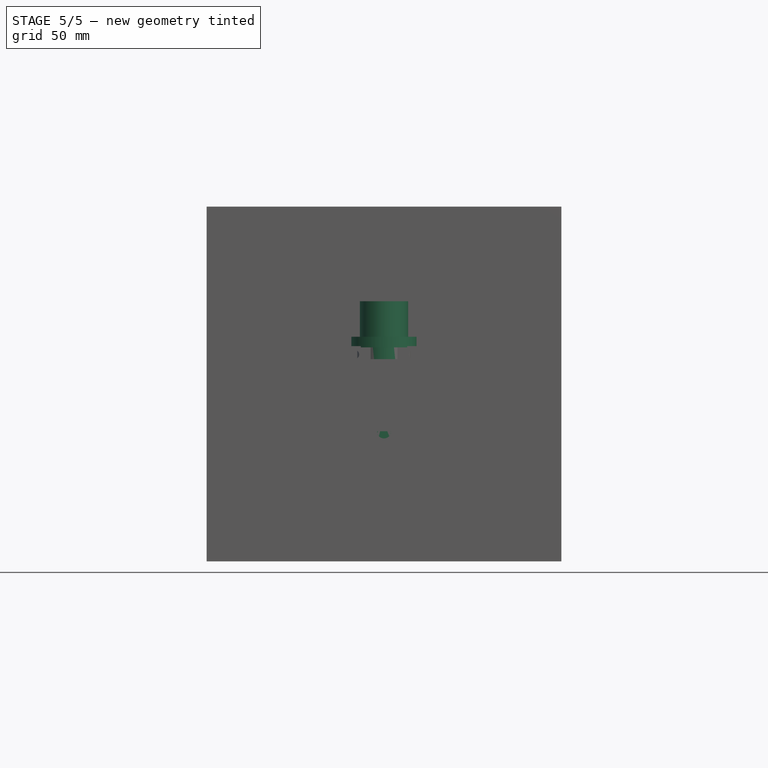
[diagram: stage 5 of 5 — front view after this stage's code; geometry added in this stage tinted green]
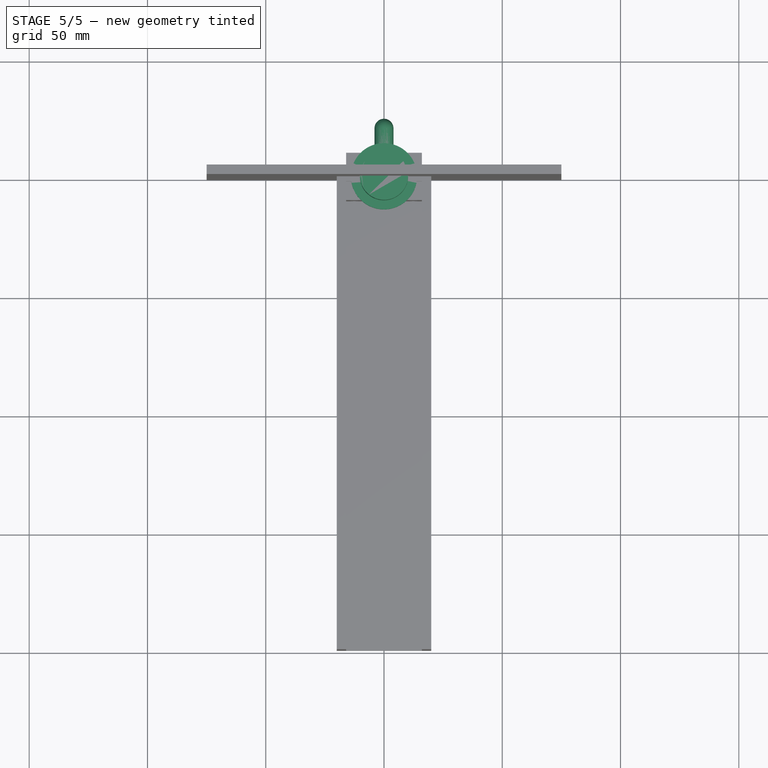
[diagram: stage 5 of 5 — top view after this stage's code; geometry added in this stage tinted green]
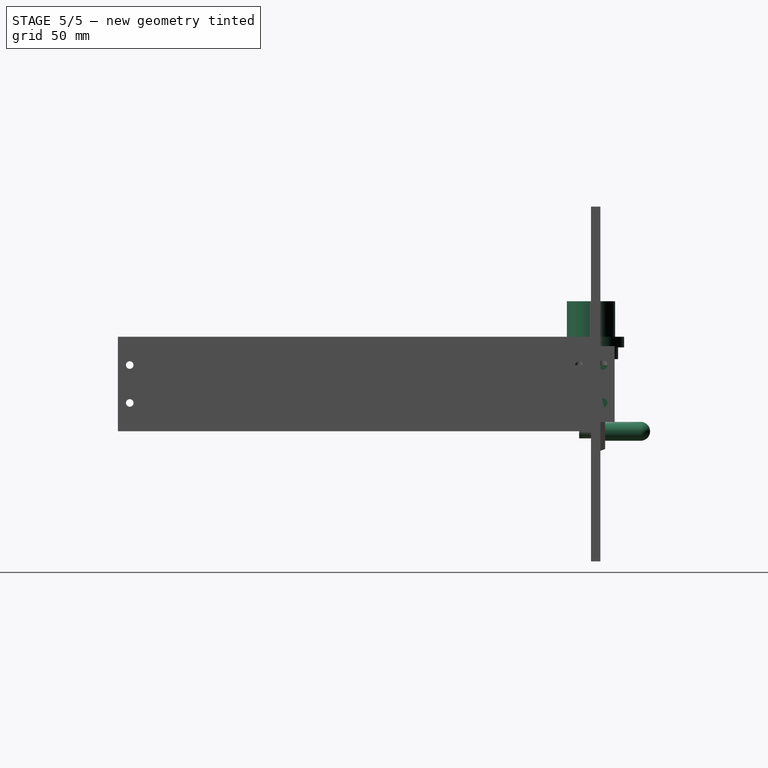
[diagram: stage 5 of 5 — right view after this stage's code; geometry added in this stage tinted green]
FEATURE [Sketcher::SketchObject] Sketch004
  FullyConstrained = true
  MapMode = 5
  Support = -> [XY_Plane010]
  sketch-geometry (6):
    g0: ArcOfCircle CenterX=0 CenterY=21 CenterZ=0 NormalX=0 NormalY=0 NormalZ=1 AngleXU=0 Radius=4 StartAngle=5e-16 EndAngle=1.5708
    g1: LineSegment StartX=4 StartY=21 StartZ=0 EndX=4 EndY=2 EndZ=0
    g2: LineSegment StartX=4 StartY=2 StartZ=0 EndX=3 EndY=2 EndZ=0
    g3: LineSegment StartX=3 StartY=2 StartZ=0 EndX=3 EndY=-5 EndZ=0
    g4: LineSegment StartX=3 StartY=-5 StartZ=0 EndX=0 EndY=-5 EndZ=0
    g5: LineSegment StartX=0 StartY=-5 StartZ=0 EndX=2e-16 EndY=25 EndZ=0
  constraints (18):
    c: PointOnObject(g0,g-2)
    c: PointOnObject(g0,g-2)
    c: DistanceX(g1) = 4
    c: Vertical(g1)
    c: Coincident(g2,g1)
    c: Horizontal(g2)
    c: Coincident(g3,g2)
    c: Vertical(g3)
    c: Coincident(g4,g3)
    c: PointOnObject(g4,g-2)
    c: Horizontal(g4)
    c: Coincident(g5,g4)
    c: Coincident(g5,g0)
    c: DistanceY(g4) = -5
    c: DistanceY(g2) = 2
    c: DistanceY(g5,g5) = 30
    c: DistanceX(g3) = 3
    c: Tangent(g0,g1) = 1.5708
FEATURE [PartDesign::Revolution] Revolution
  Angle = 360
  Axis = (0,1,0)
  Base = (0,0,0)
  Profile = -> Sketch004
  ReferenceAxis = -> Sketch004 [V_Axis]
  Reversed = true
FEATURE [Sketcher::SketchObject] Sketch017
  FullyConstrained = true
  MapMode = 5
  Placement = pos=(0,0,0) rot=(1,0,0;1.5708rad)
  Support = -> [XZ_Plane014]
  sketch-geometry (8):
    g0: LineSegment StartX=0 StartY=30.5 StartZ=0 EndX=11.5 EndY=30.5 EndZ=0
    g1: LineSegment StartX=11.5 StartY=30.5 StartZ=0 EndX=11.5 EndY=35.5 EndZ=0
    g2: LineSegment StartX=11.5 StartY=35.5 StartZ=0 EndX=14 EndY=35.5 EndZ=0
    g3: LineSegment StartX=14 StartY=35.5 StartZ=0 EndX=14 EndY=40 EndZ=0
    g4: LineSegment StartX=14 StartY=40 StartZ=0 EndX=10.2 EndY=40 EndZ=0
    g5: LineSegment StartX=10.2 StartY=40 StartZ=0 EndX=10.2 EndY=55 EndZ=0
    g6: LineSegment StartX=10.2 StartY=55 StartZ=0 EndX=0 EndY=55 EndZ=0
    g7: LineSegment StartX=0 StartY=55 StartZ=0 EndX=0 EndY=30.5 EndZ=0
  constraints (24):
    c: PointOnObject(g0,g-2)
    c: Coincident(g0,g1)
    c: Coincident(g1,g2)
    c: Horizontal(g2)
    c: Coincident(g2,g3)
    c: Coincident(g3,g4)
    c: Coincident(g4,g5)
    c: Vertical(g5)
    c: Coincident(g5,g6)
    c: Horizontal(g6)
    c: Coincident(g6,g7)
    c: Coincident(g7,g0)
    c: Vertical(g7)
    c: Horizontal(g0)
    c: Vertical(g1)
    c: Vertical(g3)
    c: Horizontal(g4)
    c: DistanceX(g6,g6) = 10.2
    c: DistanceX(g3) = 14
    c: DistanceX(g0) = 11.5
    c: DistanceY(g1,g1) = 5
    c: DistanceY(g3,g3) = 4.5
    c: DistanceY(g5,g5) = 15
    c: DistanceY(g3) = 40
FEATURE [PartDesign::Revolution] Revolution001
  Angle = 360
  Axis = (0,2e-16,1)
  Base = (0,0,0)
  Placement = pos=(0,0,0) rot=(1,0,0;1.5708rad)
  Profile = -> Sketch017
  ReferenceAxis = -> Sketch017 [V_Axis]
  Reversed = true
FEATURE [Sketcher::SketchObject] Sketch030
  FullyConstrained = true
  MapMode = 5
  Placement = pos=(-16,0,0) rot=(0.707107,0,-0.707107;3.14159rad)
  Support = -> [Pocket010]
  sketch-geometry (3):
    g0: Circle CenterX=-28 CenterY=-5 CenterZ=0 NormalX=0 NormalY=0 NormalZ=1 AngleXU=0 Radius=2
    g1: Circle CenterX=-12 CenterY=-5 CenterZ=0 NormalX=0 NormalY=0 NormalZ=1 AngleXU=0 Radius=2
    g2: LineSegment StartX=-28 StartY=-5 StartZ=0 EndX=-12 EndY=-5 EndZ=0
  constraints (8):
    c: Coincident(g2,g0)
    c: Coincident(g2,g1)
    c: Horizontal(g2)
    c: DistanceX(g2,g2) = 16
    c: Equal(g1,g0)
    c: Radius(g1) = 2
    c: DistanceY(g1) = -5
    c: DistanceX(g1) = -12
FEATURE [PartDesign::Pocket] Pocket011
  BaseFeature = -> Pocket010
  Direction = (1,0,2e-16)
  Length = 8
  Length2 = 5
  Placement = pos=(0,0,0) rot=(1,0,0;1.5708rad)
  Profile = -> Sketch030
  ReferenceAxis = -> Sketch030 [N_Axis]
  Type = 0
FEATURE [Sketcher::SketchObject] Sketch031
  FullyConstrained = true
  MapMode = 5
  Placement = pos=(16,0,0) rot=(0.707107,0,0.707107;3.14159rad)
  Support = -> [Pocket011]
  sketch-geometry (3):
    g0: LineSegment StartX=12 StartY=-5 StartZ=0 EndX=28 EndY=-5 EndZ=0
    g1: Circle CenterX=12 CenterY=-5 CenterZ=0 NormalX=0 NormalY=0 NormalZ=1 AngleXU=0 Radius=2
    g2: Circle CenterX=28 CenterY=-5 CenterZ=0 NormalX=0 NormalY=0 NormalZ=1 AngleXU=0 Radius=2
  constraints (8):
    c: Horizontal(g0)
    c: Coincident(g1,g0)
    c: Coincident(g2,g0)
    c: Equal(g2,g1)
    c: Radius(g1) = 2
    c: DistanceX(g1) = 12
    c: DistanceX(g0,g0) = 16
    c: DistanceY(g1) = -5
FEATURE [PartDesign::Pocket] Pocket012
  BaseFeature = -> Pocket011
  Direction = (-1,0,2e-16)
  Length = 8
  Length2 = 5
  Placement = pos=(0,0,0) rot=(1,0,0;1.5708rad)
  Profile = -> Sketch031
  ReferenceAxis = -> Sketch031 [N_Axis]
  Type = 0
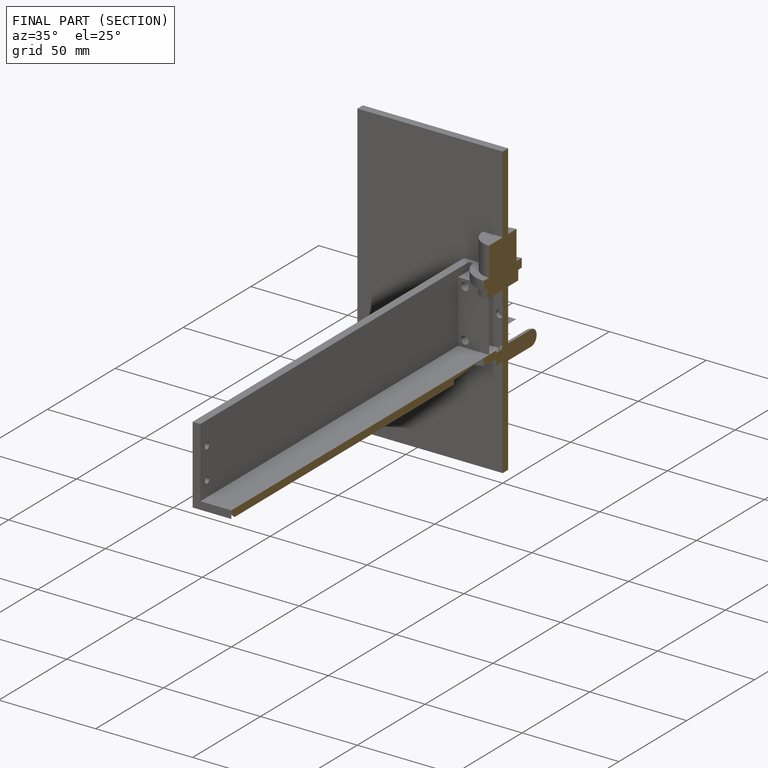
[diagram: finished part — half-section view (interior)]
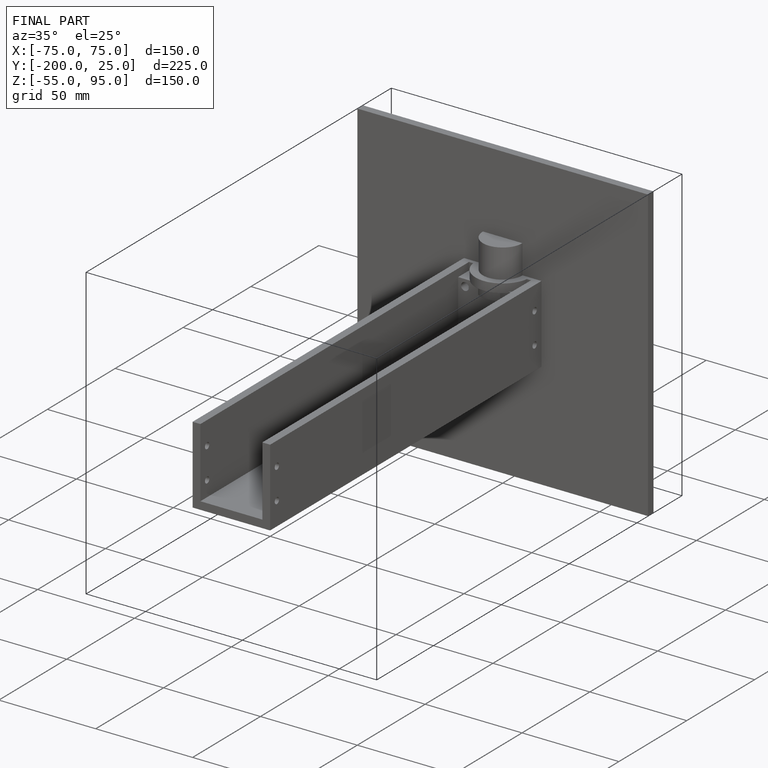
[diagram: finished part — iso view with bounding-box wireframe]
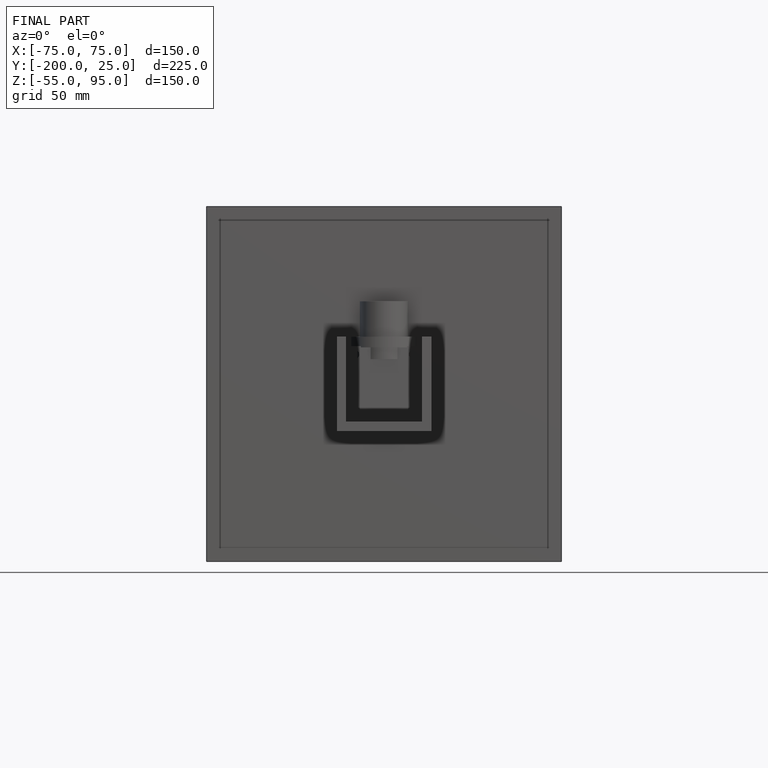
[diagram: finished part — front view with bounding-box wireframe]
